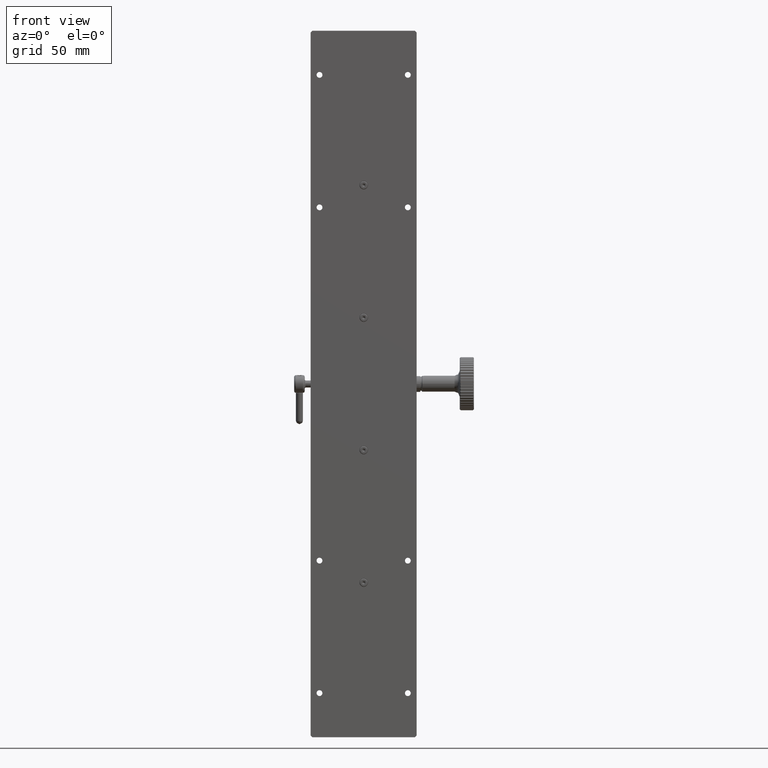
[diagram: clean part render]
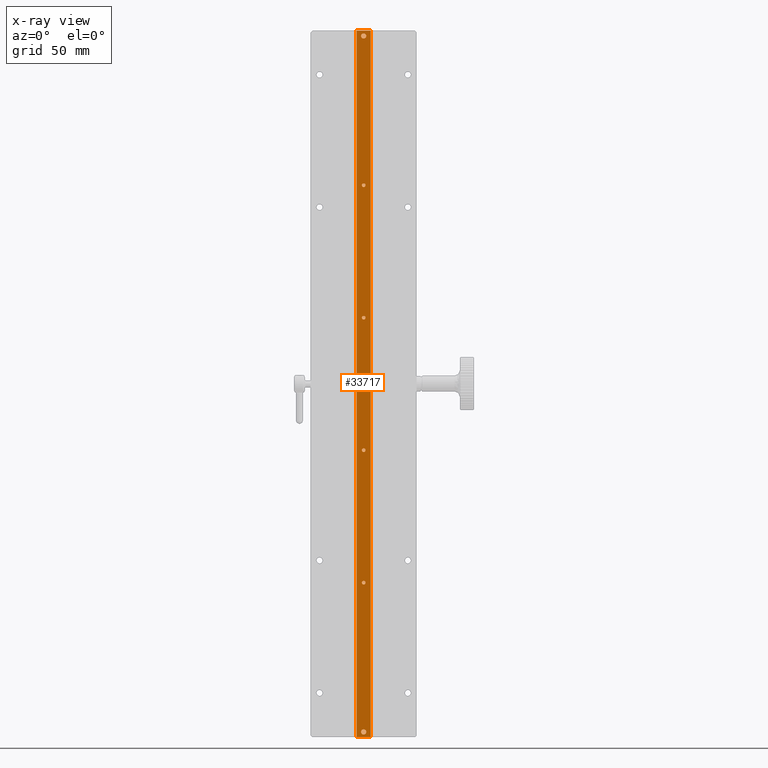
[diagram: x-ray — body ghosted, one internal face saturated and labeled with its STEP entity id]
A machine part, front view, then the same camera in x-ray: the body is ghosted and one INTERNAL B-rep face — a face not visible from any outside direction — is saturated and labeled: STEP entity #33717.
In plain terms, the highlighted planar face has unit normal (0, 1, 0).
Its self-contained STEP definition (entity closure, byte-faithful):
#2685 = CIRCLE ( 'NONE', #20917, 1.450000000000006839 ) ;
#4352 = VERTEX_POINT ( 'NONE', #94599 ) ;
#4859 = VERTEX_POINT ( 'NONE', #97671 ) ;
#7483 = DIRECTION ( 'NONE',  ( 0.000000000000000000, -0.000000000000000000, 1.000000000000000000 ) ) ;
#8041 = AXIS2_PLACEMENT_3D ( 'NONE', #43873, #43361, #51703 ) ;
#8177 = CARTESIAN_POINT ( 'NONE',  ( 64.50156960994837618, 67.00272800986743960, 250.2981807833470214 ) ) ;
#8954 = EDGE_CURVE ( 'NONE', #46378, #4859, #97812, .T. ) ;
#9579 = CIRCLE ( 'NONE', #61088, 1.024999999999998135 ) ;
#9962 = CARTESIAN_POINT ( 'NONE',  ( 68.50156960994898725, 67.00272800986743960, 413.8231807833470839 ) ) ;
#10459 = DIRECTION ( 'NONE',  ( 1.000000000000000000, 0.000000000000000000, -0.000000000000000000 ) ) ;
#10644 = EDGE_CURVE ( 'NONE', #59502, #59502, #9579, .T. ) ;
#10837 = EDGE_LOOP ( 'NONE', ( #14206 ) ) ;
#11419 = EDGE_LOOP ( 'NONE', ( #86541 ) ) ;
#12194 = CARTESIAN_POINT ( 'NONE',  ( 64.50156960994786459, 67.00272800986743960, 100.2981807833470640 ) ) ;
#13743 = CARTESIAN_POINT ( 'NONE',  ( 68.50156960994898725, 67.00272800986743960, 413.8231807833470270 ) ) ;
#14206 = ORIENTED_EDGE ( 'NONE', *, *, #89011, .F. ) ;
#16222 = ORIENTED_EDGE ( 'NONE', *, *, #77461, .F. ) ;
#16806 = EDGE_CURVE ( 'NONE', #4859, #39190, #72976, .T. ) ;
#20519 = DIRECTION ( 'NONE',  ( 0.000000000000000000, 0.000000000000000000, 1.000000000000000000 ) ) ;
#20567 = VECTOR ( 'NONE', #32202, 1000.000000000000000 ) ;
#20584 = EDGE_LOOP ( 'NONE', ( #84262 ) ) ;
#20917 = AXIS2_PLACEMENT_3D ( 'NONE', #96031, #80424, #65833 ) ;
#22218 = VERTEX_POINT ( 'NONE', #8177 ) ;
#22281 = DIRECTION ( 'NONE',  ( 0.000000000000000000, -1.000000000000000000, 0.000000000000000000 ) ) ;
#24600 = EDGE_CURVE ( 'NONE', #30833, #30833, #29851, .T. ) ;
#24655 = CIRCLE ( 'NONE', #8041, 1.024999999999998135 ) ;
#25326 = ORIENTED_EDGE ( 'NONE', *, *, #48173, .F. ) ;
#26184 = VECTOR ( 'NONE', #10459, 1000.000000000000000 ) ;
#28794 = EDGE_CURVE ( 'NONE', #4352, #46378, #65535, .T. ) ;
#29273 = ORIENTED_EDGE ( 'NONE', *, *, #8954, .F. ) ;
#29340 = PLANE ( 'NONE',  #44321 ) ;
#29361 = ORIENTED_EDGE ( 'NONE', *, *, #16806, .F. ) ;
#29851 = CIRCLE ( 'NONE', #92947, 1.024999999999998135 ) ;
#30833 = VERTEX_POINT ( 'NONE', #79181 ) ;
#31623 = CARTESIAN_POINT ( 'NONE',  ( 64.50156960994864619, 67.00272800986743960, 326.3231807833470270 ) ) ;
#32202 = DIRECTION ( 'NONE',  ( -1.000000000000000000, -0.000000000000000000, 0.000000000000000000 ) ) ;
#32916 = CARTESIAN_POINT ( 'NONE',  ( 68.50156960994793565, 67.00272800986743960, 13.82318078334699507 ) ) ;
#33717 = ADVANCED_FACE ( 'NONE', ( #62590, #77689, #46461, #68857, #101117, #78705, #45444 ), #29340, .F. ) ;
#35965 = CARTESIAN_POINT ( 'NONE',  ( 64.50156960994813460, 67.00272800986743960, 175.2981807833470214 ) ) ;
#36056 = CIRCLE ( 'NONE', #49342, 1.024999999999998135 ) ;
#36152 = CARTESIAN_POINT ( 'NONE',  ( 64.50156960994786459, 67.00272800986743960, 101.3231807833470697 ) ) ;
#36668 = DIRECTION ( 'NONE',  ( 0.000000000000000000, 0.000000000000000000, -1.000000000000000000 ) ) ;
#37168 = DIRECTION ( 'NONE',  ( 0.000000000000000000, -1.000000000000000000, 0.000000000000000000 ) ) ;
#37331 = DIRECTION ( 'NONE',  ( 0.000000000000000000, 0.000000000000000000, -1.000000000000000000 ) ) ;
#39190 = VERTEX_POINT ( 'NONE', #32916 ) ;
#39314 = AXIS2_PLACEMENT_3D ( 'NONE', #48640, #59015, #20519 ) ;
#41029 = CARTESIAN_POINT ( 'NONE',  ( 68.50156960994898725, 67.00272800986743960, 13.82318078334698797 ) ) ;
#43361 = DIRECTION ( 'NONE',  ( 0.000000000000000000, -1.000000000000000000, 0.000000000000000000 ) ) ;
#43873 = CARTESIAN_POINT ( 'NONE',  ( 64.50156960994813460, 67.00272800986743960, 176.3231807833470270 ) ) ;
#43973 = EDGE_LOOP ( 'NONE', ( #25326 ) ) ;
#44295 = CIRCLE ( 'NONE', #39314, 1.450000000000006839 ) ;
#44321 = AXIS2_PLACEMENT_3D ( 'NONE', #13743, #46966, #7483 ) ;
#45444 = FACE_BOUND ( 'NONE', #65837, .T. ) ;
#46378 = VERTEX_POINT ( 'NONE', #46827 ) ;
#46461 = FACE_BOUND ( 'NONE', #11419, .T. ) ;
#46827 = CARTESIAN_POINT ( 'NONE',  ( 60.50156960994865329, 67.00272800986743960, 413.8231807833470839 ) ) ;
#46966 = DIRECTION ( 'NONE',  ( 0.000000000000000000, 1.000000000000000000, 0.000000000000000000 ) ) ;
#48173 = EDGE_CURVE ( 'NONE', #84837, #84837, #24655, .T. ) ;
#48238 = VECTOR ( 'NONE', #66034, 1000.000000000000000 ) ;
#48640 = CARTESIAN_POINT ( 'NONE',  ( 64.50156960994758037, 67.00272800986739696, 16.82318078334704836 ) ) ;
#49342 = AXIS2_PLACEMENT_3D ( 'NONE', #60747, #61264, #37331 ) ;
#51463 = CARTESIAN_POINT ( 'NONE',  ( 60.50156960994760169, 67.00272800986743960, 413.8231807833470270 ) ) ;
#51703 = DIRECTION ( 'NONE',  ( 0.000000000000000000, 0.000000000000000000, -1.000000000000000000 ) ) ;
#59015 = DIRECTION ( 'NONE',  ( -0.000000000000000000, -1.000000000000000000, -0.000000000000000000 ) ) ;
#59502 = VERTEX_POINT ( 'NONE', #12194 ) ;
#60747 = CARTESIAN_POINT ( 'NONE',  ( 64.50156960994837618, 67.00272800986743960, 251.3231807833470270 ) ) ;
#60991 = EDGE_CURVE ( 'NONE', #93142, #93142, #2685, .T. ) ;
#61088 = AXIS2_PLACEMENT_3D ( 'NONE', #36152, #37168, #36668 ) ;
#61264 = DIRECTION ( 'NONE',  ( 0.000000000000000000, -1.000000000000000000, 0.000000000000000000 ) ) ;
#62590 = FACE_OUTER_BOUND ( 'NONE', #71862, .T. ) ;
#62638 = ORIENTED_EDGE ( 'NONE', *, *, #28794, .F. ) ;
#65535 = LINE ( 'NONE', #51463, #48238 ) ;
#65758 = ORIENTED_EDGE ( 'NONE', *, *, #10644, .F. ) ;
#65833 = DIRECTION ( 'NONE',  ( 0.000000000000000000, 0.000000000000000000, 1.000000000000000000 ) ) ;
#65837 = EDGE_LOOP ( 'NONE', ( #65758 ) ) ;
#66034 = DIRECTION ( 'NONE',  ( 0.000000000000000000, -0.000000000000000000, 1.000000000000000000 ) ) ;
#68228 = VECTOR ( 'NONE', #87538, 1000.000000000000000 ) ;
#68383 = ORIENTED_EDGE ( 'NONE', *, *, #85797, .F. ) ;
#68857 = FACE_BOUND ( 'NONE', #20584, .T. ) ;
#70446 = EDGE_LOOP ( 'NONE', ( #68383 ) ) ;
#71862 = EDGE_LOOP ( 'NONE', ( #16222, #29361, #29273, #62638 ) ) ;
#71935 = CARTESIAN_POINT ( 'NONE',  ( 68.50156960994898725, 67.00272800986743960, 413.8231807833470270 ) ) ;
#72976 = LINE ( 'NONE', #71935, #68228 ) ;
#77461 = EDGE_CURVE ( 'NONE', #39190, #4352, #102955, .T. ) ;
#77689 = FACE_BOUND ( 'NONE', #70446, .T. ) ;
#77868 = CARTESIAN_POINT ( 'NONE',  ( 64.50156960994758037, 67.00272800986739696, 18.27318078334705476 ) ) ;
#78705 = FACE_BOUND ( 'NONE', #43973, .T. ) ;
#79181 = CARTESIAN_POINT ( 'NONE',  ( 64.50156960994864619, 67.00272800986743960, 325.2981807833470498 ) ) ;
#80424 = DIRECTION ( 'NONE',  ( -0.000000000000000000, -1.000000000000000000, -0.000000000000000000 ) ) ;
#84262 = ORIENTED_EDGE ( 'NONE', *, *, #24600, .F. ) ;
#84837 = VERTEX_POINT ( 'NONE', #35965 ) ;
#85797 = EDGE_CURVE ( 'NONE', #102303, #102303, #44295, .T. ) ;
#86541 = ORIENTED_EDGE ( 'NONE', *, *, #60991, .F. ) ;
#87266 = DIRECTION ( 'NONE',  ( 0.000000000000000000, 0.000000000000000000, -1.000000000000000000 ) ) ;
#87538 = DIRECTION ( 'NONE',  ( -0.000000000000000000, 0.000000000000000000, -1.000000000000000000 ) ) ;
#89011 = EDGE_CURVE ( 'NONE', #22218, #22218, #36056, .T. ) ;
#92947 = AXIS2_PLACEMENT_3D ( 'NONE', #31623, #22281, #87266 ) ;
#93142 = VERTEX_POINT ( 'NONE', #101984 ) ;
#94599 = CARTESIAN_POINT ( 'NONE',  ( 60.50156960994760880, 67.00272800986743960, 13.82318078334703060 ) ) ;
#96031 = CARTESIAN_POINT ( 'NONE',  ( 64.50156960994898725, 67.00272800986743960, 410.8231807833471407 ) ) ;
#97671 = CARTESIAN_POINT ( 'NONE',  ( 68.50156960994898725, 67.00272800986743960, 413.8231807833470270 ) ) ;
#97812 = LINE ( 'NONE', #9962, #26184 ) ;
#101117 = FACE_BOUND ( 'NONE', #10837, .T. ) ;
#101984 = CARTESIAN_POINT ( 'NONE',  ( 64.50156960994898725, 67.00272800986743960, 412.2731807833471294 ) ) ;
#102303 = VERTEX_POINT ( 'NONE', #77868 ) ;
#102955 = LINE ( 'NONE', #41029, #20567 ) ;